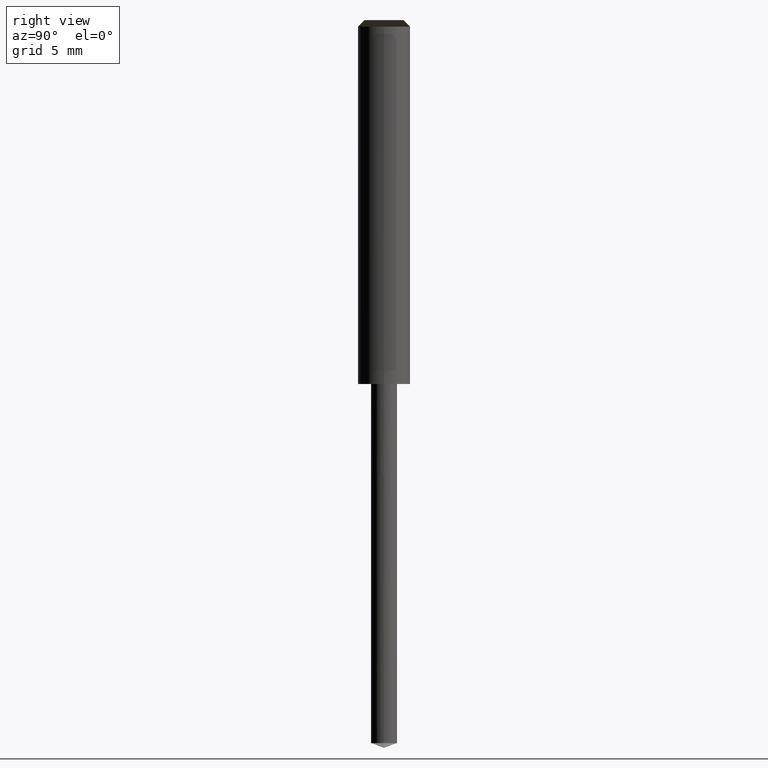
[diagram: clean part render]
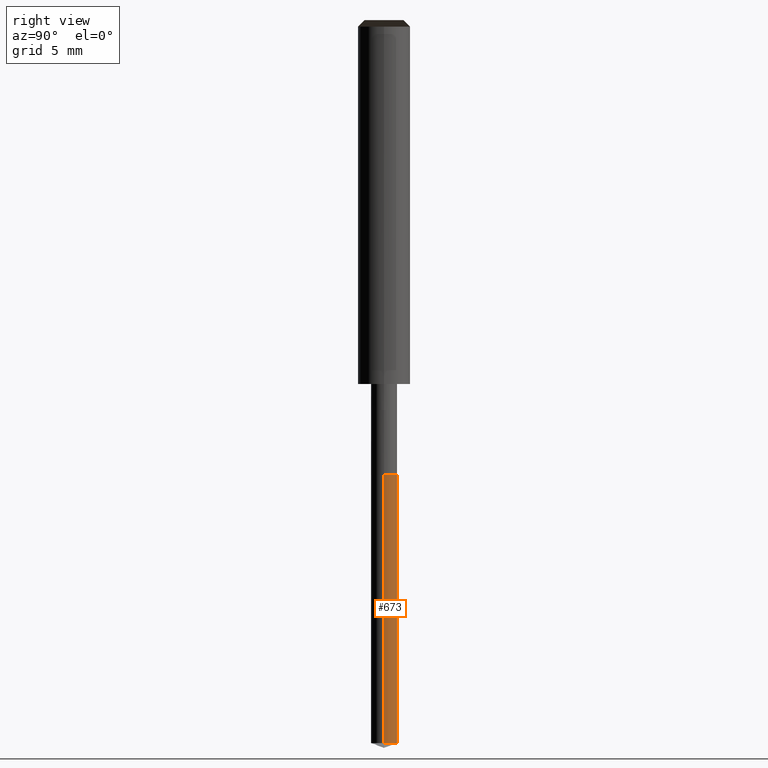
[diagram: same view with one face highlighted and labeled with its STEP entity id]
A machine part, right view. The second image highlights one B-rep face of the part: STEP entity #673.
In plain terms, the highlighted face is a freeform B-spline surface patch.
Its self-contained STEP definition (entity closure, byte-faithful):
#575=CARTESIAN_POINT('',(1.0,0.0,-27.636029765734));
#576=CARTESIAN_POINT('',(1.0,1.0,-27.636029765734));
#577=CARTESIAN_POINT('',(0.0,1.0,-27.636029765734));
#578=CARTESIAN_POINT('',(-1.0,1.0,-27.636029765734));
#579=CARTESIAN_POINT('',(-1.0,0.0,-27.636029765734));
#580=CARTESIAN_POINT('',(1.0,0.0,-7.0));
#581=CARTESIAN_POINT('',(1.0,1.0,-7.0));
#582=CARTESIAN_POINT('',(0.0,1.0,-7.0));
#583=CARTESIAN_POINT('',(-1.0,1.0,-7.0));
#584=CARTESIAN_POINT('',(-1.0,0.0,-7.0));
#654=(
BOUNDED_SURFACE()
B_SPLINE_SURFACE(1,2,(
(#575,#576,#577,#578,#579),
(#580,#581,#582,#583,#584)
), .UNSPECIFIED.,.F.,.F.,.F.)
B_SPLINE_SURFACE_WITH_KNOTS((2,2),(3,2,3),(
0.0,1.0),(
0.0,0.5,1.0), .UNSPECIFIED.)
GEOMETRIC_REPRESENTATION_ITEM()
RATIONAL_B_SPLINE_SURFACE(((1.0,0.707106781187,1.0,0.707106781187,1.0),
(1.0,0.707106781187,1.0,0.707106781187,1.0)
))
REPRESENTATION_ITEM('')
SURFACE()
);
#655=(
BOUNDED_CURVE()
B_SPLINE_CURVE(2,(#579,#578,#577,#576,#575),.UNSPECIFIED.,.F.,.F.)
B_SPLINE_CURVE_WITH_KNOTS((3,2,3),
(0.0,0.5,1.0),.UNSPECIFIED.)
CURVE()
GEOMETRIC_REPRESENTATION_ITEM()
RATIONAL_B_SPLINE_CURVE((1.0,0.707106781187,1.0,0.707106781187,1.0))
REPRESENTATION_ITEM('')
);
#656=(
BOUNDED_CURVE()
B_SPLINE_CURVE(1,(#575,#580),.UNSPECIFIED.,.F.,.F.)
B_SPLINE_CURVE_WITH_KNOTS((2,2),
(0.0,1.0),.UNSPECIFIED.)
CURVE()
GEOMETRIC_REPRESENTATION_ITEM()
RATIONAL_B_SPLINE_CURVE((1.0,1.0))
REPRESENTATION_ITEM('')
);
#657=(
BOUNDED_CURVE()
B_SPLINE_CURVE(2,(#580,#581,#582,#583,#584),.UNSPECIFIED.,.F.,.F.)
B_SPLINE_CURVE_WITH_KNOTS((3,2,3),
(0.0,0.5,1.0),.UNSPECIFIED.)
CURVE()
GEOMETRIC_REPRESENTATION_ITEM()
RATIONAL_B_SPLINE_CURVE((1.0,0.707106781187,1.0,0.707106781187,1.0))
REPRESENTATION_ITEM('')
);
#658=(
BOUNDED_CURVE()
B_SPLINE_CURVE(1,(#584,#579),.UNSPECIFIED.,.F.,.F.)
B_SPLINE_CURVE_WITH_KNOTS((2,2),
(0.0,1.0),.UNSPECIFIED.)
CURVE()
GEOMETRIC_REPRESENTATION_ITEM()
RATIONAL_B_SPLINE_CURVE((1.0,1.0))
REPRESENTATION_ITEM('')
);
#659=VERTEX_POINT('',#575);
#660=VERTEX_POINT('',#579);
#661=VERTEX_POINT('',#580);
#662=VERTEX_POINT('',#584);
#663=EDGE_CURVE('',#660,#659,#655,.T.);
#664=EDGE_CURVE('',#659,#661,#656,.T.);
#665=EDGE_CURVE('',#661,#662,#657,.T.);
#666=EDGE_CURVE('',#662,#660,#658,.T.);
#667=ORIENTED_EDGE('',*,*,#663,.T.);
#668=ORIENTED_EDGE('',*,*,#664,.T.);
#669=ORIENTED_EDGE('',*,*,#665,.T.);
#670=ORIENTED_EDGE('',*,*,#666,.T.);
#671=EDGE_LOOP('',(#667,#668,#669,#670));
#672=FACE_OUTER_BOUND('',#671,.T.);
#673=ADVANCED_FACE('',(#672),#654,.T.);